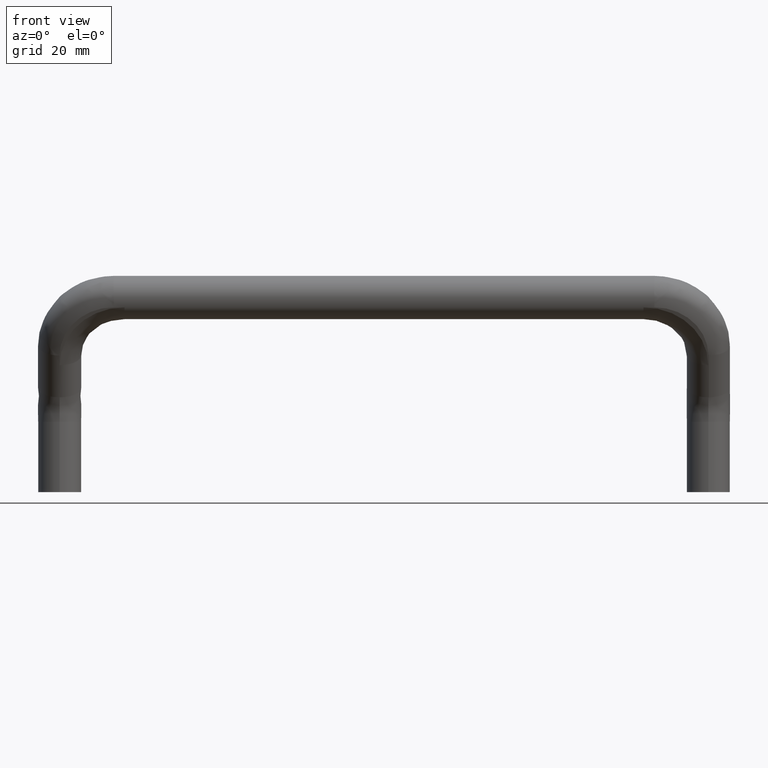
[diagram: clean part render]
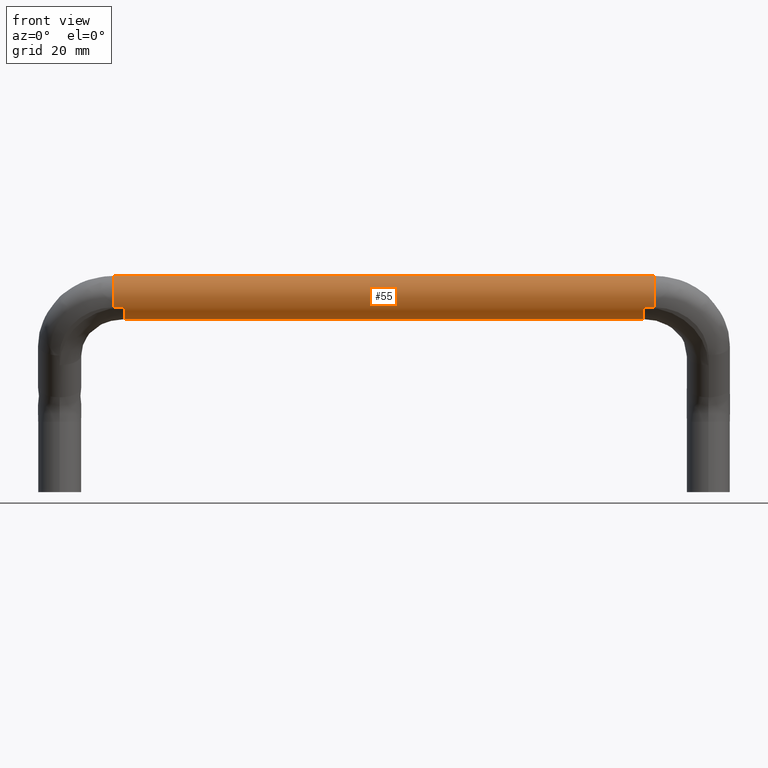
[diagram: same view with one face highlighted and labeled with its STEP entity id]
A machine part, front view. The second image highlights one B-rep face of the part: STEP entity #55.
In plain terms, the highlighted cylindrical surface (edge-blend (fillet) strip) has radius 4 mm, axis along (1, -0, -0).
Its self-contained STEP definition (entity closure, byte-faithful):
#55=ADVANCED_FACE('',(#223),#222,.T.);
#222=CYLINDRICAL_SURFACE('',#598,4.00000000000E+00);
#223=FACE_OUTER_BOUND('',#599,.T.);
#595=CARTESIAN_POINT('',(0.00000000000E+00,4.27405506820E-11,3.99999999992E+00));
#596=DIRECTION('',(1.00000000000E+00,-0.00000000000E+00,-0.00000000000E+00));
#597=DIRECTION('',(-0.00000000000E+00,-0.00000000000E+00,-1.00000000000E+00));
#598=AXIS2_PLACEMENT_3D('',#595,#596,#597);
#599=EDGE_LOOP('',(#762,#763,#764,#765,#766,#767,#768,#769));
#762=ORIENTED_EDGE('',*,*,#861,.F.);
#763=ORIENTED_EDGE('',*,*,#873,.T.);
#764=ORIENTED_EDGE('',*,*,#857,.F.);
#765=ORIENTED_EDGE('',*,*,#892,.T.);
#766=ORIENTED_EDGE('',*,*,#878,.T.);
#767=ORIENTED_EDGE('',*,*,#881,.F.);
#768=ORIENTED_EDGE('',*,*,#849,.T.);
#769=ORIENTED_EDGE('',*,*,#893,.F.);
#849=EDGE_CURVE('',#977,#970,#978,.T.);
#857=EDGE_CURVE('',#1026,#1033,#1034,.T.);
#861=EDGE_CURVE('',#1060,#1061,#1062,.T.);
#873=EDGE_CURVE('',#1060,#1033,#1142,.T.);
#878=EDGE_CURVE('',#1175,#1168,#1176,.T.);
#881=EDGE_CURVE('',#977,#1168,#1194,.T.);
#892=EDGE_CURVE('',#1026,#1175,#1268,.T.);
#893=EDGE_CURVE('',#1061,#970,#1274,.T.);
#970=VERTEX_POINT('',#1444);
#977=VERTEX_POINT('',#1449);
#978=CIRCLE('',#1453,4.00000000000E+00);
#1026=VERTEX_POINT('',#1484);
#1033=VERTEX_POINT('',#1489);
#1034=CIRCLE('',#1493,4.00000000000E+00);
#1060=VERTEX_POINT('',#1508);
#1061=VERTEX_POINT('',#1509);
#1062=CIRCLE('',#1513,4.00000000000E+00);
#1142=LINE('',#1564,#1565);
#1168=VERTEX_POINT('',#1580);
#1175=VERTEX_POINT('',#1585);
#1176=CIRCLE('',#1589,4.00000000000E+00);
#1194=LINE('',#1597,#1598);
#1268=(BOUNDED_CURVE() B_SPLINE_CURVE(1,(#1646,#1647),.UNSPECIFIED.,.F.,.F.) B_SPLINE_CURVE_WITH_KNOTS((2,2),(1.00000000000E-01,9.00000000260E-01),.UNSPECIFIED.) CURVE() GEOMETRIC_REPRESENTATION_ITEM() RATIONAL_B_SPLINE_CURVE((1.00000000000E+00,1.00000000000E+00)) REPRESENTATION_ITEM('') );
#1274=(BOUNDED_CURVE() B_SPLINE_CURVE(1,(#1648,#1649),.UNSPECIFIED.,.F.,.F.) B_SPLINE_CURVE_WITH_KNOTS((2,2),(8.33333333332E-02,9.16666666667E-01),.UNSPECIFIED.) CURVE() GEOMETRIC_REPRESENTATION_ITEM() RATIONAL_B_SPLINE_CURVE((7.50000000000E-01,7.50000000000E-01)) REPRESENTATION_ITEM('') );
#1444=CARTESIAN_POINT('',(5.00000000001E+01,1.16973811745E-04,7.99999999837E+00));
#1449=CARTESIAN_POINT('',(5.00000000001E+01,-3.56459052424E+00,2.18514617820E+00));
#1450=CARTESIAN_POINT('',(5.00000000001E+01,-4.33537754307E-11,4.00000000008E+00));
#1451=DIRECTION('',(-1.00000000000E+00,1.57413412893E-15,-3.55271585154E-15));
#1452=DIRECTION('',(3.55271367880E-15,-1.38027852902E-06,-9.99999999999E-01));
#1453=AXIS2_PLACEMENT_3D('',#1450,#1451,#1452);
#1484=CARTESIAN_POINT('',(-4.80000000001E+01,-5.52098460034E-06,-7.61902096730E-11));
#1489=CARTESIAN_POINT('',(-4.80000000001E+01,-3.56459052424E+00,2.18514617820E+00));
#1490=CARTESIAN_POINT('',(-4.80000000001E+01,4.27399001607E-11,3.99999999992E+00));
#1491=DIRECTION('',(-1.00000000000E+00,3.14826953025E-15,-6.18357886458E-15));
#1492=DIRECTION('',(-4.55310903712E-31,8.91147631052E-01,4.53713455466E-01));
#1493=AXIS2_PLACEMENT_3D('',#1490,#1491,#1492);
#1508=CARTESIAN_POINT('',(-5.00000000001E+01,-3.56459052424E+00,2.18514617820E+00));
#1509=CARTESIAN_POINT('',(-5.00000000001E+01,1.16973878095E-04,7.99999999837E+00));
#1510=CARTESIAN_POINT('',(-5.00000000001E+01,-4.33537754307E-11,4.00000000008E+00));
#1511=DIRECTION('',(-1.00000000000E+00,-1.57413476514E-15,3.09178943229E-15));
#1512=DIRECTION('',(-4.24870678162E-31,-8.91147631050E-01,-4.53713455470E-01));
#1513=AXIS2_PLACEMENT_3D('',#1510,#1511,#1512);
#1564=CARTESIAN_POINT('',(-5.00000000001E+01,-3.56459052424E+00,2.18514617820E+00));
#1565=VECTOR('',#1566,2.00000000000E+00);
#1566=DIRECTION('',(1.00000000000E+00,0.00000000000E+00,0.00000000000E+00));
#1580=CARTESIAN_POINT('',(4.80000000001E+01,-3.56459052424E+00,2.18514617820E+00));
#1585=CARTESIAN_POINT('',(4.80000000001E+01,-5.52098460072E-06,-7.61897973083E-11));
#1586=CARTESIAN_POINT('',(4.80000000001E+01,4.27399001607E-11,3.99999999992E+00));
#1587=DIRECTION('',(-1.00000000000E+00,-3.14829451637E-15,5.32916258750E-15));
#1588=DIRECTION('',(5.32907051820E-15,2.92434610622E-05,9.99999999572E-01));
#1589=AXIS2_PLACEMENT_3D('',#1586,#1587,#1588);
#1597=CARTESIAN_POINT('',(5.00000000001E+01,-3.56459052424E+00,2.18514617820E+00));
#1598=VECTOR('',#1599,2.00000000000E+00);
#1599=DIRECTION('',(-1.00000000000E+00,0.00000000000E+00,0.00000000000E+00));
#1646=CARTESIAN_POINT('',(-4.80000000001E+01,4.27405506820E-11,-8.00000066192E-11));
#1647=CARTESIAN_POINT('',(4.80000000313E+01,4.27405506820E-11,-8.00000066192E-11));
#1648=CARTESIAN_POINT('',(-5.00000000001E+01,4.27403297939E-11,7.99999999992E+00));
#1649=CARTESIAN_POINT('',(5.00000000001E+01,4.27403297939E-11,7.99999999992E+00));